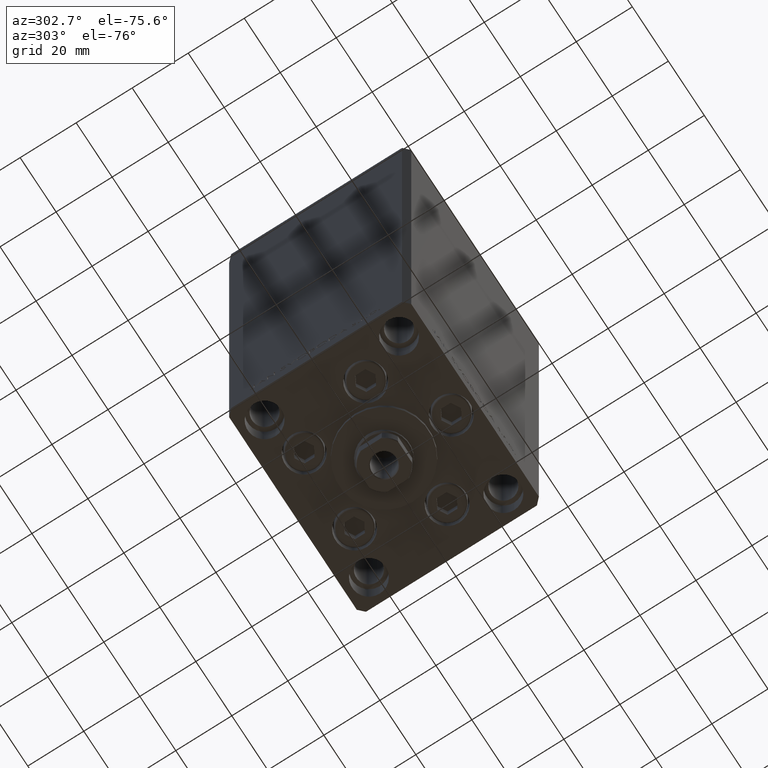
[diagram: clean part render]
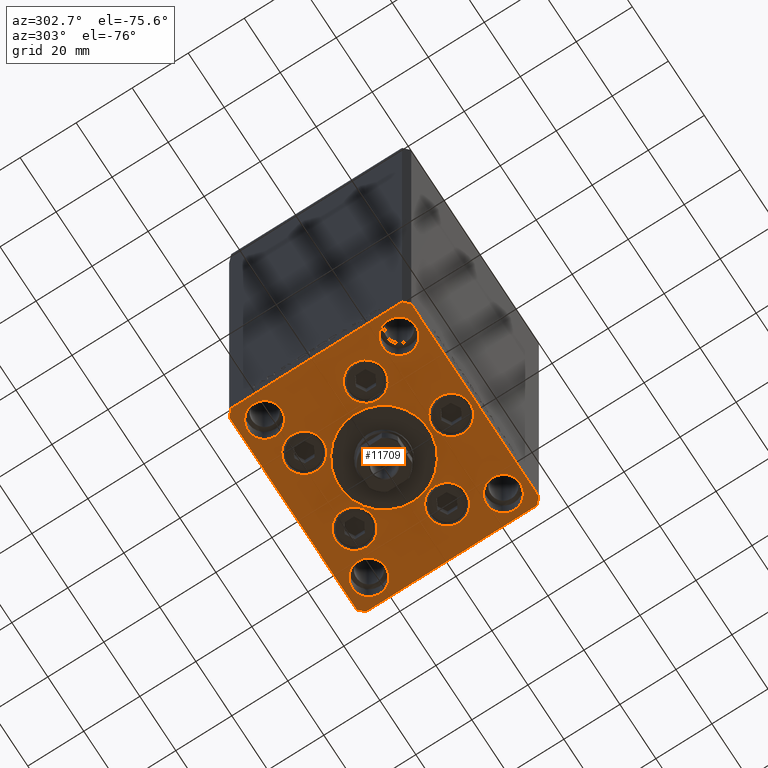
[diagram: same view with one face highlighted and labeled with its STEP entity id]
A machine part, auxiliary view. The second image highlights one B-rep face of the part: STEP entity #11709.
In plain terms, the highlighted planar face has unit normal (0, 0, -1).
Its self-contained STEP definition (entity closure, byte-faithful):
#36 = CARTESIAN_POINT ( 'NONE',  ( 35.50000000000001421, -32.49999999999992184, 0.000000000000000000 ) ) ;
#467 = DIRECTION ( 'NONE',  ( 0.000000000000000000, 0.000000000000000000, 1.000000000000000000 ) ) ;
#491 = VECTOR ( 'NONE', #2556, 1000.000000000000000 ) ;
#614 = VECTOR ( 'NONE', #41349, 1000.000000000000000 ) ;
#751 = CARTESIAN_POINT ( 'NONE',  ( -37.50000000000000000, -30.50000000000004263, 0.000000000000000000 ) ) ;
#865 = EDGE_LOOP ( 'NONE', ( #47041, #17980 ) ) ;
#1573 = FACE_BOUND ( 'NONE', #27979, .T. ) ;
#1682 = EDGE_LOOP ( 'NONE', ( #24378, #30917 ) ) ;
#1801 = CARTESIAN_POINT ( 'NONE',  ( 0.000000000000000000, -6.938893903907228378E-15, 0.000000000000000000 ) ) ;
#1863 = AXIS2_PLACEMENT_3D ( 'NONE', #30332, #41697, #37990 ) ;
#1948 = DIRECTION ( 'NONE',  ( -0.7071067811865524577, 0.7071067811865426878, 0.000000000000000000 ) ) ;
#2008 = VERTEX_POINT ( 'NONE', #25824 ) ;
#2072 = ORIENTED_EDGE ( 'NONE', *, *, #20909, .F. ) ;
#2128 = AXIS2_PLACEMENT_3D ( 'NONE', #37076, #17274, #5891 ) ;
#2217 = CARTESIAN_POINT ( 'NONE',  ( 35.00000000000000000, 24.00000000000000355, 0.000000000000000000 ) ) ;
#2508 = EDGE_LOOP ( 'NONE', ( #3074, #25667 ) ) ;
#2556 = DIRECTION ( 'NONE',  ( 0.000000000000000000, 1.000000000000000000, 0.000000000000000000 ) ) ;
#2755 = VERTEX_POINT ( 'NONE', #20649 ) ;
#3074 = ORIENTED_EDGE ( 'NONE', *, *, #48040, .F. ) ;
#3101 = DIRECTION ( 'NONE',  ( -1.000000000000000000, -1.954618001100627573E-16, 0.000000000000000000 ) ) ;
#3398 = CIRCLE ( 'NONE', #39729, 6.750000000000000000 ) ;
#3400 = DIRECTION ( 'NONE',  ( 0.000000000000000000, 0.000000000000000000, 1.000000000000000000 ) ) ;
#3544 = DIRECTION ( 'NONE',  ( 0.000000000000000000, 0.000000000000000000, 1.000000000000000000 ) ) ;
#3721 = CIRCLE ( 'NONE', #31369, 6.749999999999997335 ) ;
#4117 = EDGE_CURVE ( 'NONE', #5228, #6568, #38474, .T. ) ;
#4152 = VERTEX_POINT ( 'NONE', #38834 ) ;
#4222 = VERTEX_POINT ( 'NONE', #28432 ) ;
#4278 = VERTEX_POINT ( 'NONE', #38044 ) ;
#4537 = CARTESIAN_POINT ( 'NONE',  ( 35.50000000000001421, -32.49999999999992184, 0.000000000000000000 ) ) ;
#4743 = EDGE_CURVE ( 'NONE', #4278, #2008, #31374, .T. ) ;
#5005 = ORIENTED_EDGE ( 'NONE', *, *, #15788, .T. ) ;
#5011 = CIRCLE ( 'NONE', #23196, 6.749999999999999112 ) ;
#5036 = DIRECTION ( 'NONE',  ( -0.000000000000000000, 0.000000000000000000, 1.000000000000000000 ) ) ;
#5142 = CARTESIAN_POINT ( 'NONE',  ( -29.00000000000000000, -23.99999999999999645, 0.000000000000000000 ) ) ;
#5228 = VERTEX_POINT ( 'NONE', #28868 ) ;
#5313 = CARTESIAN_POINT ( 'NONE',  ( -35.50000000000000711, 32.49999999999997868, 0.000000000000000000 ) ) ;
#5571 = EDGE_CURVE ( 'NONE', #30795, #40579, #26252, .T. ) ;
#5761 = DIRECTION ( 'NONE',  ( 1.000000000000000000, 0.000000000000000000, 0.000000000000000000 ) ) ;
#5762 = LINE ( 'NONE', #29022, #491 ) ;
#5864 = CARTESIAN_POINT ( 'NONE',  ( -15.87741699796953476, -8.000000000000000000, 0.000000000000000000 ) ) ;
#5891 = DIRECTION ( 'NONE',  ( 1.000000000000000000, 0.000000000000000000, 0.000000000000000000 ) ) ;
#6522 = EDGE_CURVE ( 'NONE', #18383, #39559, #21167, .T. ) ;
#6568 = VERTEX_POINT ( 'NONE', #20804 ) ;
#6782 = ORIENTED_EDGE ( 'NONE', *, *, #45435, .F. ) ;
#7167 = CARTESIAN_POINT ( 'NONE',  ( -37.50000000000001421, 30.50000000000000000, 0.000000000000000000 ) ) ;
#7173 = VERTEX_POINT ( 'NONE', #44076 ) ;
#7502 = DIRECTION ( 'NONE',  ( 1.000000000000000000, 0.000000000000000000, 0.000000000000000000 ) ) ;
#8334 = EDGE_CURVE ( 'NONE', #40541, #42888, #3721, .T. ) ;
#8422 = DIRECTION ( 'NONE',  ( 1.000000000000000000, 1.172770800660376149E-15, 0.000000000000000000 ) ) ;
#8992 = VERTEX_POINT ( 'NONE', #15964 ) ;
#9142 = AXIS2_PLACEMENT_3D ( 'NONE', #38762, #31587, #19952 ) ;
#9228 = FACE_BOUND ( 'NONE', #1682, .T. ) ;
#9245 = EDGE_CURVE ( 'NONE', #17714, #33199, #21127, .T. ) ;
#9501 = DIRECTION ( 'NONE',  ( 0.000000000000000000, 0.000000000000000000, 1.000000000000000000 ) ) ;
#9706 = DIRECTION ( 'NONE',  ( 0.000000000000000000, 0.000000000000000000, 1.000000000000000000 ) ) ;
#9812 = ORIENTED_EDGE ( 'NONE', *, *, #43941, .F. ) ;
#9918 = DIRECTION ( 'NONE',  ( 0.000000000000000000, 0.000000000000000000, 1.000000000000000000 ) ) ;
#10018 = CARTESIAN_POINT ( 'NONE',  ( 35.50000000000000000, 32.49999999999999289, 0.000000000000000000 ) ) ;
#10552 = EDGE_CURVE ( 'NONE', #18929, #8992, #43910, .T. ) ;
#11221 = CIRCLE ( 'NONE', #44439, 16.00000000000000355 ) ;
#11629 = ORIENTED_EDGE ( 'NONE', *, *, #46943, .F. ) ;
#11709 = ADVANCED_FACE ( 'NONE', ( #20608, #24807, #39168, #36205, #1573, #9228, #42642, #42879, #32244, #17391, #31992 ), #38931, .T. ) ;
#12155 = CARTESIAN_POINT ( 'NONE',  ( 0.000000000000000000, -6.938893903907228378E-15, 0.000000000000000000 ) ) ;
#12312 = VERTEX_POINT ( 'NONE', #24921 ) ;
#12353 = EDGE_CURVE ( 'NONE', #16608, #12312, #18072, .T. ) ;
#12748 = CARTESIAN_POINT ( 'NONE',  ( -29.37741699796953654, -8.000000000000000000, 0.000000000000000000 ) ) ;
#13168 = DIRECTION ( 'NONE',  ( 0.000000000000000000, 0.000000000000000000, 1.000000000000000000 ) ) ;
#13753 = VERTEX_POINT ( 'NONE', #47641 ) ;
#13810 = VERTEX_POINT ( 'NONE', #12748 ) ;
#13996 = EDGE_CURVE ( 'NONE', #15021, #46072, #29859, .T. ) ;
#14155 = DIRECTION ( 'NONE',  ( 1.000000000000000000, 0.000000000000000000, 0.000000000000000000 ) ) ;
#14395 = CARTESIAN_POINT ( 'NONE',  ( 13.99106857963324124, 19.50000000000000000, 0.000000000000000000 ) ) ;
#14503 = ORIENTED_EDGE ( 'NONE', *, *, #4117, .F. ) ;
#14534 = CARTESIAN_POINT ( 'NONE',  ( 35.50000000000000000, 32.49999999999999289, 0.000000000000000000 ) ) ;
#14771 = AXIS2_PLACEMENT_3D ( 'NONE', #16790, #31648, #38827 ) ;
#15021 = VERTEX_POINT ( 'NONE', #2217 ) ;
#15788 = EDGE_CURVE ( 'NONE', #8992, #4152, #35251, .T. ) ;
#15886 = ORIENTED_EDGE ( 'NONE', *, *, #39873, .T. ) ;
#15964 = CARTESIAN_POINT ( 'NONE',  ( -35.50000000000000711, 32.49999999999997868, 0.000000000000000000 ) ) ;
#16035 = CARTESIAN_POINT ( 'NONE',  ( 29.00000000000000355, -23.99999999999999645, 0.000000000000000000 ) ) ;
#16405 = VERTEX_POINT ( 'NONE', #5864 ) ;
#16556 = DIRECTION ( 'NONE',  ( 1.000000000000000000, 0.000000000000000000, 0.000000000000000000 ) ) ;
#16608 = VERTEX_POINT ( 'NONE', #35029 ) ;
#16790 = CARTESIAN_POINT ( 'NONE',  ( 22.62741699796953299, -8.000000000000000000, 0.000000000000000000 ) ) ;
#16818 = CARTESIAN_POINT ( 'NONE',  ( -35.50000000000001421, -32.50000000000000711, 0.000000000000000000 ) ) ;
#16900 = EDGE_CURVE ( 'NONE', #13810, #16405, #30741, .T. ) ;
#17274 = DIRECTION ( 'NONE',  ( 0.000000000000000000, 0.000000000000000000, 1.000000000000000000 ) ) ;
#17391 = FACE_BOUND ( 'NONE', #18165, .T. ) ;
#17714 = VERTEX_POINT ( 'NONE', #31255 ) ;
#17980 = ORIENTED_EDGE ( 'NONE', *, *, #26659, .F. ) ;
#18072 = CIRCLE ( 'NONE', #38582, 6.750000000001552536 ) ;
#18076 = EDGE_LOOP ( 'NONE', ( #37623, #11629 ) ) ;
#18116 = DIRECTION ( 'NONE',  ( 0.000000000000000000, 0.000000000000000000, 1.000000000000000000 ) ) ;
#18165 = EDGE_LOOP ( 'NONE', ( #6782, #2072 ) ) ;
#18383 = VERTEX_POINT ( 'NONE', #19819 ) ;
#18929 = VERTEX_POINT ( 'NONE', #14534 ) ;
#19041 = CARTESIAN_POINT ( 'NONE',  ( 23.00000000000000000, 24.00000000000000355, 0.000000000000000000 ) ) ;
#19159 = CARTESIAN_POINT ( 'NONE',  ( 20.74106857963323947, 19.50000000000000000, 0.000000000000000000 ) ) ;
#19205 = ORIENTED_EDGE ( 'NONE', *, *, #10552, .T. ) ;
#19290 = CARTESIAN_POINT ( 'NONE',  ( -29.00000000000000000, 24.00000000000000711, 0.000000000000000000 ) ) ;
#19605 = AXIS2_PLACEMENT_3D ( 'NONE', #35944, #5036, #31753 ) ;
#19819 = CARTESIAN_POINT ( 'NONE',  ( -35.00000000000000000, 24.00000000000000711, 0.000000000000000000 ) ) ;
#19952 = DIRECTION ( 'NONE',  ( 1.000000000000000000, 0.000000000000000000, 0.000000000000000000 ) ) ;
#20265 = DIRECTION ( 'NONE',  ( 0.000000000000000000, 0.000000000000000000, 1.000000000000000000 ) ) ;
#20442 = ORIENTED_EDGE ( 'NONE', *, *, #8334, .F. ) ;
#20608 = FACE_BOUND ( 'NONE', #24342, .T. ) ;
#20649 = CARTESIAN_POINT ( 'NONE',  ( -37.50000000000000000, -30.50000000000004263, 0.000000000000000000 ) ) ;
#20804 = CARTESIAN_POINT ( 'NONE',  ( -23.00000000000000000, -23.99999999999999645, 0.000000000000000000 ) ) ;
#20909 = EDGE_CURVE ( 'NONE', #4222, #13753, #23739, .T. ) ;
#21121 = ORIENTED_EDGE ( 'NONE', *, *, #13996, .F. ) ;
#21127 = CIRCLE ( 'NONE', #23492, 16.00000000000000355 ) ;
#21167 = CIRCLE ( 'NONE', #26701, 6.000000000000001776 ) ;
#21859 = CARTESIAN_POINT ( 'NONE',  ( 29.37741699796954364, -8.000000000000000000, 0.000000000000000000 ) ) ;
#22782 = VERTEX_POINT ( 'NONE', #21859 ) ;
#22832 = VECTOR ( 'NONE', #31552, 1000.000000000000000 ) ;
#22843 = CARTESIAN_POINT ( 'NONE',  ( 13.99106857963324124, 19.50000000000000000, 0.000000000000000000 ) ) ;
#22855 = CARTESIAN_POINT ( 'NONE',  ( -35.50000000000001421, -32.50000000000000711, 0.000000000000000000 ) ) ;
#23196 = AXIS2_PLACEMENT_3D ( 'NONE', #40133, #18116, #14155 ) ;
#23457 = CIRCLE ( 'NONE', #14771, 6.750000000000009770 ) ;
#23492 = AXIS2_PLACEMENT_3D ( 'NONE', #12155, #27251, #42345 ) ;
#23611 = CARTESIAN_POINT ( 'NONE',  ( 37.50000000000000711, -30.49999999999992895, 0.000000000000000000 ) ) ;
#23739 = CIRCLE ( 'NONE', #33264, 5.999999999999998224 ) ;
#24027 = CARTESIAN_POINT ( 'NONE',  ( -29.00000000000000000, 24.00000000000000711, 0.000000000000000000 ) ) ;
#24102 = VECTOR ( 'NONE', #1948, 1000.000000000000000 ) ;
#24153 = CIRCLE ( 'NONE', #9142, 6.000000000000001776 ) ;
#24226 = CIRCLE ( 'NONE', #2128, 6.750000000001552536 ) ;
#24299 = AXIS2_PLACEMENT_3D ( 'NONE', #32498, #43863, #28535 ) ;
#24342 = EDGE_LOOP ( 'NONE', ( #35066, #31089 ) ) ;
#24350 = DIRECTION ( 'NONE',  ( 1.000000000000000000, 0.000000000000000000, 0.000000000000000000 ) ) ;
#24378 = ORIENTED_EDGE ( 'NONE', *, *, #32341, .F. ) ;
#24807 = FACE_BOUND ( 'NONE', #865, .T. ) ;
#24921 = CARTESIAN_POINT ( 'NONE',  ( -6.750000000001552536, -24.00000000000001066, 0.000000000000000000 ) ) ;
#25242 = EDGE_CURVE ( 'NONE', #4152, #2755, #41072, .T. ) ;
#25599 = VECTOR ( 'NONE', #8422, 1000.000000000000000 ) ;
#25603 = ORIENTED_EDGE ( 'NONE', *, *, #32444, .F. ) ;
#25667 = ORIENTED_EDGE ( 'NONE', *, *, #6522, .F. ) ;
#25824 = CARTESIAN_POINT ( 'NONE',  ( -20.74106857963324302, 19.50000000000000000, 0.000000000000000000 ) ) ;
#26252 = LINE ( 'NONE', #36, #614 ) ;
#26313 = CARTESIAN_POINT ( 'NONE',  ( -22.62741699796953299, -8.000000000000000000, 0.000000000000000000 ) ) ;
#26381 = ORIENTED_EDGE ( 'NONE', *, *, #29255, .F. ) ;
#26384 = CARTESIAN_POINT ( 'NONE',  ( -23.00000000000000000, 24.00000000000000711, 0.000000000000000000 ) ) ;
#26659 = EDGE_CURVE ( 'NONE', #2008, #4278, #3398, .T. ) ;
#26688 = DIRECTION ( 'NONE',  ( 2.275047181608926165E-16, -1.000000000000000000, 0.000000000000000000 ) ) ;
#26701 = AXIS2_PLACEMENT_3D ( 'NONE', #24027, #9918, #27980 ) ;
#27251 = DIRECTION ( 'NONE',  ( 0.000000000000000000, 0.000000000000000000, 1.000000000000000000 ) ) ;
#27411 = AXIS2_PLACEMENT_3D ( 'NONE', #46744, #20265, #16556 ) ;
#27979 = EDGE_LOOP ( 'NONE', ( #34103, #28833 ) ) ;
#27980 = DIRECTION ( 'NONE',  ( 1.000000000000000000, 0.000000000000000000, 0.000000000000000000 ) ) ;
#28419 = CARTESIAN_POINT ( 'NONE',  ( 37.50000000000000711, 30.50000000000001421, 0.000000000000000000 ) ) ;
#28432 = CARTESIAN_POINT ( 'NONE',  ( 23.00000000000000711, -23.99999999999999645, 0.000000000000000000 ) ) ;
#28535 = DIRECTION ( 'NONE',  ( 1.000000000000000000, 0.000000000000000000, 0.000000000000000000 ) ) ;
#28638 = EDGE_CURVE ( 'NONE', #33199, #17714, #11221, .T. ) ;
#28833 = ORIENTED_EDGE ( 'NONE', *, *, #46281, .F. ) ;
#28868 = CARTESIAN_POINT ( 'NONE',  ( -35.00000000000000000, -23.99999999999999645, 0.000000000000000000 ) ) ;
#29022 = CARTESIAN_POINT ( 'NONE',  ( 37.50000000000000711, -30.49999999999992895, 0.000000000000000000 ) ) ;
#29255 = EDGE_CURVE ( 'NONE', #6568, #5228, #39692, .T. ) ;
#29859 = CIRCLE ( 'NONE', #24299, 6.000000000000001776 ) ;
#30332 = CARTESIAN_POINT ( 'NONE',  ( 22.62741699796953299, -8.000000000000000000, 0.000000000000000000 ) ) ;
#30741 = CIRCLE ( 'NONE', #39418, 6.749999999999999112 ) ;
#30795 = VERTEX_POINT ( 'NONE', #4537 ) ;
#30917 = ORIENTED_EDGE ( 'NONE', *, *, #16900, .F. ) ;
#31077 = CIRCLE ( 'NONE', #1863, 6.750000000000009770 ) ;
#31089 = ORIENTED_EDGE ( 'NONE', *, *, #9245, .F. ) ;
#31255 = CARTESIAN_POINT ( 'NONE',  ( 16.00000000000000355, -4.979459025271462852E-15, 0.000000000000000000 ) ) ;
#31369 = AXIS2_PLACEMENT_3D ( 'NONE', #22843, #3544, #37442 ) ;
#31374 = CIRCLE ( 'NONE', #44024, 6.750000000000000000 ) ;
#31536 = EDGE_LOOP ( 'NONE', ( #41251, #35523, #35907, #15886, #33694, #19205, #5005, #42841 ) ) ;
#31552 = DIRECTION ( 'NONE',  ( -0.7071067811865524577, -0.7071067811865426878, 0.000000000000000000 ) ) ;
#31587 = DIRECTION ( 'NONE',  ( 0.000000000000000000, 0.000000000000000000, 1.000000000000000000 ) ) ;
#31648 = DIRECTION ( 'NONE',  ( 0.000000000000000000, 0.000000000000000000, 1.000000000000000000 ) ) ;
#31720 = DIRECTION ( 'NONE',  ( 0.000000000000000000, 0.000000000000000000, 1.000000000000000000 ) ) ;
#31753 = DIRECTION ( 'NONE',  ( 1.000000000000000000, 0.000000000000000000, 0.000000000000000000 ) ) ;
#31883 = LINE ( 'NONE', #28419, #24102 ) ;
#31936 = EDGE_CURVE ( 'NONE', #22782, #7173, #31077, .T. ) ;
#31992 = FACE_OUTER_BOUND ( 'NONE', #31536, .T. ) ;
#32207 = DIRECTION ( 'NONE',  ( 1.000000000000000000, 0.000000000000000000, 0.000000000000000000 ) ) ;
#32244 = FACE_BOUND ( 'NONE', #35484, .T. ) ;
#32275 = CARTESIAN_POINT ( 'NONE',  ( -13.99106857963324124, 19.50000000000000000, 0.000000000000000000 ) ) ;
#32341 = EDGE_CURVE ( 'NONE', #16405, #13810, #5011, .T. ) ;
#32444 = EDGE_CURVE ( 'NONE', #42888, #40541, #36637, .T. ) ;
#32480 = DIRECTION ( 'NONE',  ( 1.000000000000000000, 0.000000000000000000, 0.000000000000000000 ) ) ;
#32498 = CARTESIAN_POINT ( 'NONE',  ( 29.00000000000000000, 24.00000000000000355, 0.000000000000000000 ) ) ;
#33045 = VERTEX_POINT ( 'NONE', #22855 ) ;
#33199 = VERTEX_POINT ( 'NONE', #40632 ) ;
#33264 = AXIS2_PLACEMENT_3D ( 'NONE', #16035, #467, #46222 ) ;
#33285 = EDGE_CURVE ( 'NONE', #33045, #30795, #38855, .T. ) ;
#33456 = DIRECTION ( 'NONE',  ( 0.000000000000000000, 0.000000000000000000, 1.000000000000000000 ) ) ;
#33687 = VECTOR ( 'NONE', #46020, 1000.000000000000000 ) ;
#33694 = ORIENTED_EDGE ( 'NONE', *, *, #36405, .T. ) ;
#33837 = DIRECTION ( 'NONE',  ( 1.000000000000000000, 0.000000000000000000, 0.000000000000000000 ) ) ;
#34103 = ORIENTED_EDGE ( 'NONE', *, *, #12353, .F. ) ;
#34401 = LINE ( 'NONE', #751, #33687 ) ;
#35029 = CARTESIAN_POINT ( 'NONE',  ( 6.750000000001552536, -24.00000000000001066, 0.000000000000000000 ) ) ;
#35066 = ORIENTED_EDGE ( 'NONE', *, *, #28638, .F. ) ;
#35251 = LINE ( 'NONE', #5313, #22832 ) ;
#35287 = CIRCLE ( 'NONE', #47937, 5.999999999999998224 ) ;
#35394 = VECTOR ( 'NONE', #3101, 1000.000000000000000 ) ;
#35484 = EDGE_LOOP ( 'NONE', ( #26381, #14503 ) ) ;
#35523 = ORIENTED_EDGE ( 'NONE', *, *, #33285, .T. ) ;
#35573 = DIRECTION ( 'NONE',  ( 0.000000000000000000, 0.000000000000000000, 1.000000000000000000 ) ) ;
#35702 = CARTESIAN_POINT ( 'NONE',  ( 29.00000000000000355, -23.99999999999999645, 0.000000000000000000 ) ) ;
#35907 = ORIENTED_EDGE ( 'NONE', *, *, #5571, .T. ) ;
#35944 = CARTESIAN_POINT ( 'NONE',  ( 0.000000000000000000, 0.000000000000000000, 0.000000000000000000 ) ) ;
#36205 = FACE_BOUND ( 'NONE', #18076, .T. ) ;
#36405 = EDGE_CURVE ( 'NONE', #44418, #18929, #31883, .T. ) ;
#36561 = AXIS2_PLACEMENT_3D ( 'NONE', #5142, #35573, #39036 ) ;
#36637 = CIRCLE ( 'NONE', #42928, 6.749999999999997335 ) ;
#36939 = AXIS2_PLACEMENT_3D ( 'NONE', #19290, #48517, #37862 ) ;
#37076 = CARTESIAN_POINT ( 'NONE',  ( 0.000000000000000000, -24.00000000000001066, 0.000000000000000000 ) ) ;
#37442 = DIRECTION ( 'NONE',  ( 1.000000000000000000, 0.000000000000000000, 0.000000000000000000 ) ) ;
#37623 = ORIENTED_EDGE ( 'NONE', *, *, #31936, .F. ) ;
#37635 = DIRECTION ( 'NONE',  ( 1.000000000000000000, 0.000000000000000000, 0.000000000000000000 ) ) ;
#37862 = DIRECTION ( 'NONE',  ( 1.000000000000000000, 0.000000000000000000, 0.000000000000000000 ) ) ;
#37990 = DIRECTION ( 'NONE',  ( 1.000000000000000000, 0.000000000000000000, 0.000000000000000000 ) ) ;
#38044 = CARTESIAN_POINT ( 'NONE',  ( -7.241068579633241242, 19.50000000000000000, 0.000000000000000000 ) ) ;
#38474 = CIRCLE ( 'NONE', #27411, 6.000000000000001776 ) ;
#38582 = AXIS2_PLACEMENT_3D ( 'NONE', #44963, #3400, #33837 ) ;
#38762 = CARTESIAN_POINT ( 'NONE',  ( 29.00000000000000000, 24.00000000000000355, 0.000000000000000000 ) ) ;
#38827 = DIRECTION ( 'NONE',  ( 1.000000000000000000, 0.000000000000000000, 0.000000000000000000 ) ) ;
#38834 = CARTESIAN_POINT ( 'NONE',  ( -37.50000000000001421, 30.50000000000000000, 0.000000000000000000 ) ) ;
#38855 = LINE ( 'NONE', #16818, #25599 ) ;
#38931 = PLANE ( 'NONE',  #19605 ) ;
#39036 = DIRECTION ( 'NONE',  ( 1.000000000000000000, 0.000000000000000000, 0.000000000000000000 ) ) ;
#39168 = FACE_BOUND ( 'NONE', #48951, .T. ) ;
#39418 = AXIS2_PLACEMENT_3D ( 'NONE', #26313, #41406, #7502 ) ;
#39559 = VERTEX_POINT ( 'NONE', #26384 ) ;
#39692 = CIRCLE ( 'NONE', #36561, 6.000000000000001776 ) ;
#39729 = AXIS2_PLACEMENT_3D ( 'NONE', #32275, #9501, #24350 ) ;
#39873 = EDGE_CURVE ( 'NONE', #40579, #44418, #5762, .T. ) ;
#40133 = CARTESIAN_POINT ( 'NONE',  ( -22.62741699796953299, -8.000000000000000000, 0.000000000000000000 ) ) ;
#40486 = VECTOR ( 'NONE', #26688, 1000.000000000000000 ) ;
#40541 = VERTEX_POINT ( 'NONE', #19159 ) ;
#40579 = VERTEX_POINT ( 'NONE', #23611 ) ;
#40632 = CARTESIAN_POINT ( 'NONE',  ( -16.00000000000000355, -6.938893903907228378E-15, 0.000000000000000000 ) ) ;
#40882 = CIRCLE ( 'NONE', #36939, 6.000000000000001776 ) ;
#41072 = LINE ( 'NONE', #7167, #40486 ) ;
#41078 = CARTESIAN_POINT ( 'NONE',  ( 7.241068579633242130, 19.50000000000000000, 0.000000000000000000 ) ) ;
#41251 = ORIENTED_EDGE ( 'NONE', *, *, #44458, .T. ) ;
#41349 = DIRECTION ( 'NONE',  ( 0.7071067811865463515, 0.7071067811865487940, 0.000000000000000000 ) ) ;
#41406 = DIRECTION ( 'NONE',  ( 0.000000000000000000, 0.000000000000000000, 1.000000000000000000 ) ) ;
#41697 = DIRECTION ( 'NONE',  ( 0.000000000000000000, 0.000000000000000000, 1.000000000000000000 ) ) ;
#42051 = CARTESIAN_POINT ( 'NONE',  ( 37.50000000000000711, 30.50000000000001421, 0.000000000000000000 ) ) ;
#42345 = DIRECTION ( 'NONE',  ( 1.000000000000000000, 0.000000000000000000, 0.000000000000000000 ) ) ;
#42642 = FACE_BOUND ( 'NONE', #43383, .T. ) ;
#42841 = ORIENTED_EDGE ( 'NONE', *, *, #25242, .T. ) ;
#42842 = CARTESIAN_POINT ( 'NONE',  ( -13.99106857963324124, 19.50000000000000000, 0.000000000000000000 ) ) ;
#42879 = FACE_BOUND ( 'NONE', #2508, .T. ) ;
#42888 = VERTEX_POINT ( 'NONE', #41078 ) ;
#42928 = AXIS2_PLACEMENT_3D ( 'NONE', #14395, #33456, #37635 ) ;
#43383 = EDGE_LOOP ( 'NONE', ( #21121, #9812 ) ) ;
#43863 = DIRECTION ( 'NONE',  ( 0.000000000000000000, 0.000000000000000000, 1.000000000000000000 ) ) ;
#43910 = LINE ( 'NONE', #10018, #35394 ) ;
#43941 = EDGE_CURVE ( 'NONE', #46072, #15021, #24153, .T. ) ;
#44024 = AXIS2_PLACEMENT_3D ( 'NONE', #42842, #31720, #32207 ) ;
#44076 = CARTESIAN_POINT ( 'NONE',  ( 15.87741699796952410, -8.000000000000000000, 0.000000000000000000 ) ) ;
#44418 = VERTEX_POINT ( 'NONE', #42051 ) ;
#44439 = AXIS2_PLACEMENT_3D ( 'NONE', #1801, #9706, #32480 ) ;
#44458 = EDGE_CURVE ( 'NONE', #2755, #33045, #34401, .T. ) ;
#44963 = CARTESIAN_POINT ( 'NONE',  ( 0.000000000000000000, -24.00000000000001066, 0.000000000000000000 ) ) ;
#45435 = EDGE_CURVE ( 'NONE', #13753, #4222, #35287, .T. ) ;
#46020 = DIRECTION ( 'NONE',  ( 0.7071067811865512365, -0.7071067811865439090, 0.000000000000000000 ) ) ;
#46072 = VERTEX_POINT ( 'NONE', #19041 ) ;
#46222 = DIRECTION ( 'NONE',  ( 1.000000000000000000, 0.000000000000000000, 0.000000000000000000 ) ) ;
#46281 = EDGE_CURVE ( 'NONE', #12312, #16608, #24226, .T. ) ;
#46744 = CARTESIAN_POINT ( 'NONE',  ( -29.00000000000000000, -23.99999999999999645, 0.000000000000000000 ) ) ;
#46943 = EDGE_CURVE ( 'NONE', #7173, #22782, #23457, .T. ) ;
#47041 = ORIENTED_EDGE ( 'NONE', *, *, #4743, .F. ) ;
#47641 = CARTESIAN_POINT ( 'NONE',  ( 35.00000000000000000, -23.99999999999999645, 0.000000000000000000 ) ) ;
#47937 = AXIS2_PLACEMENT_3D ( 'NONE', #35702, #13168, #5761 ) ;
#48040 = EDGE_CURVE ( 'NONE', #39559, #18383, #40882, .T. ) ;
#48517 = DIRECTION ( 'NONE',  ( 0.000000000000000000, 0.000000000000000000, 1.000000000000000000 ) ) ;
#48951 = EDGE_LOOP ( 'NONE', ( #20442, #25603 ) ) ;